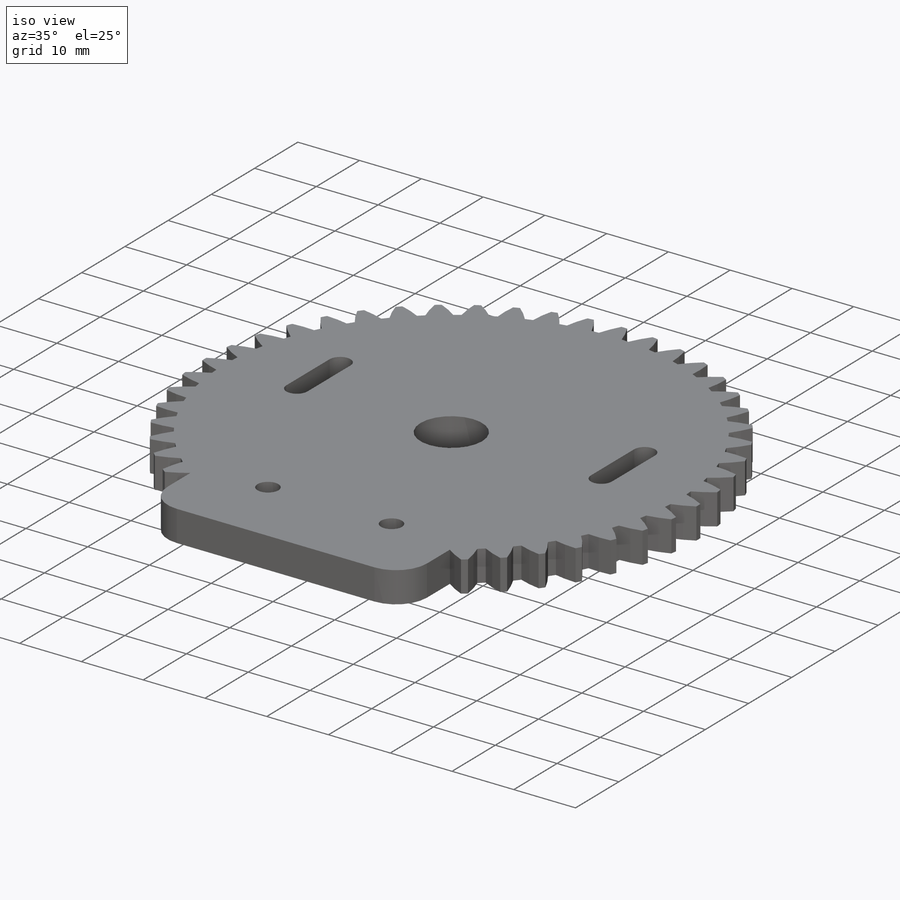
[diagram: iso view]
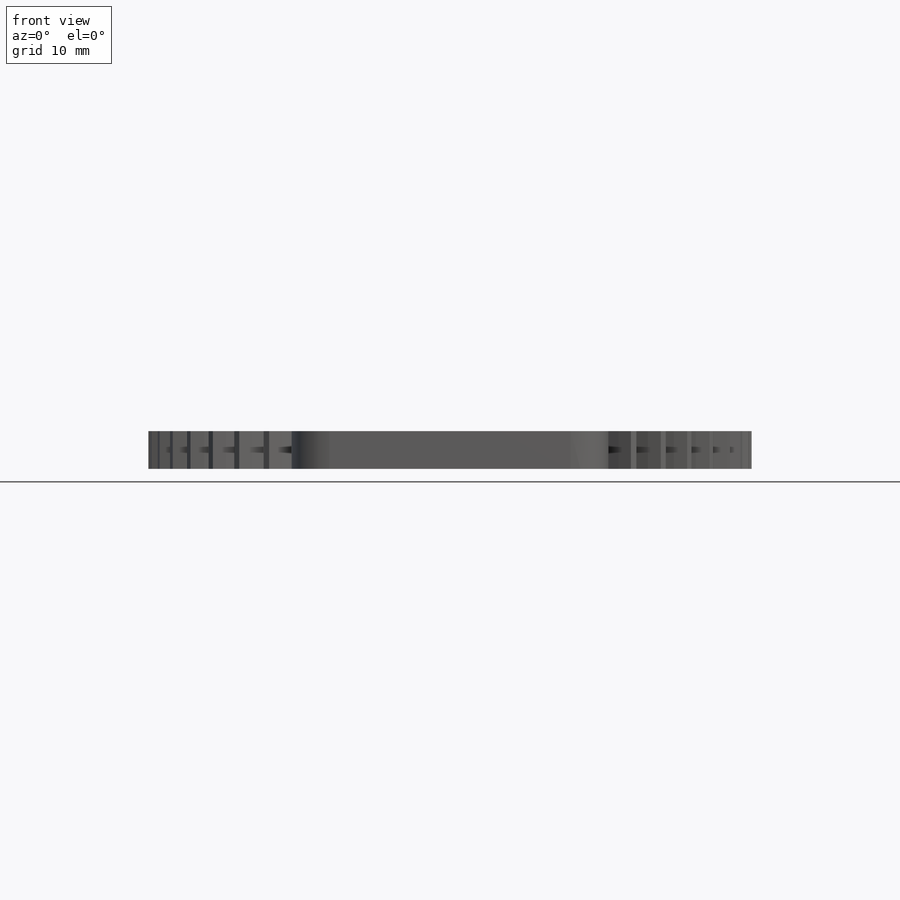
[diagram: front view]
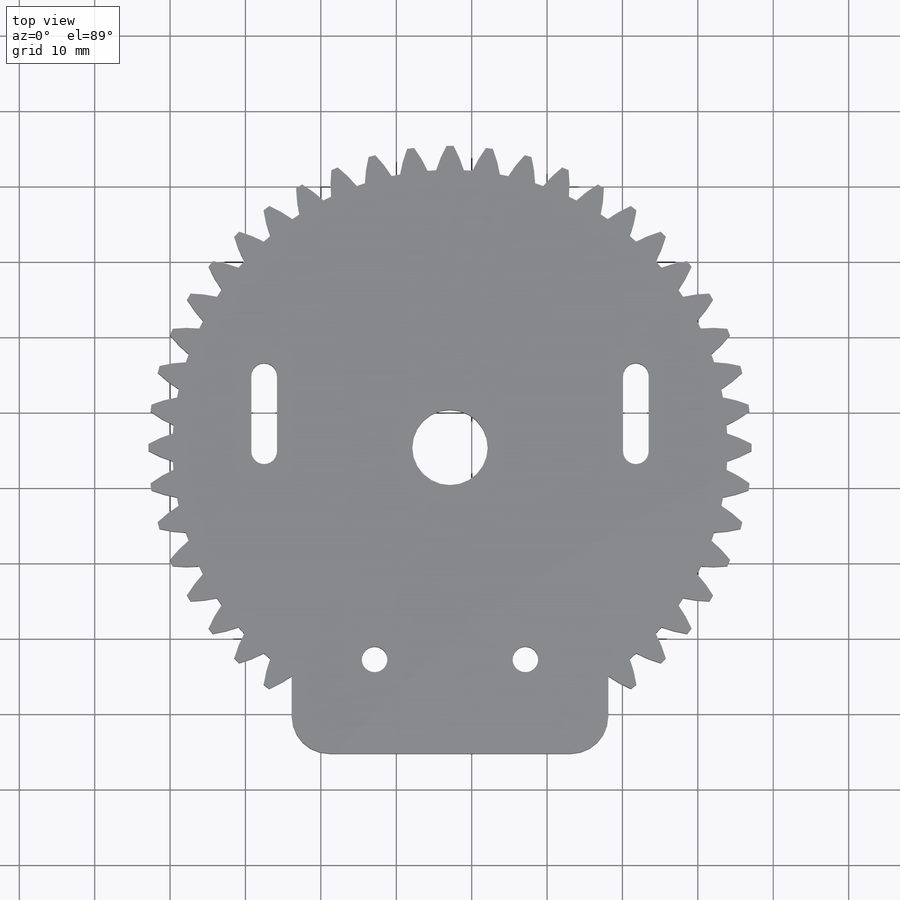
[diagram: top view]
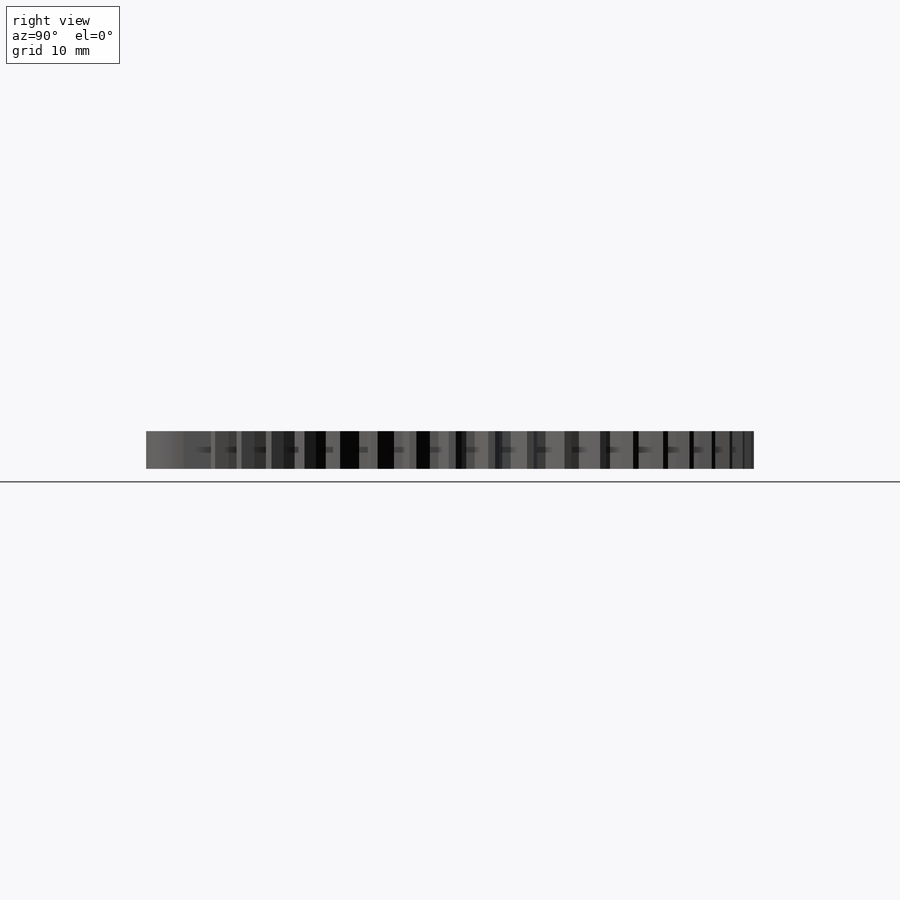
[diagram: right view]
SOLIDWORKS PART (.sldprt)
format: sldprt  version: not decoded by parser v0  size: 540,160 bytes
history: native  units: mm
features: sketch x4, extrude x2, cut_extrude x2, material x1, fillet x1 (+11 scaffold rows collapsed)
feature tree (21):
  scaffold x11  (default folders/planes/origin — collapsed)
  material  "Acrylic (Medium-high impact)"
  sketch  "Sketch2"  dims[D1=10.0mm]
  sketch  "Sketch7"  dims[D3=3.4mm D1=20.0mm D2=28.113mm]
  sketch  "Sketch8"  dims[D1=42.0mm D2=25.0mm]
  extrude  "Boss-Extrude3"  Depth=5mm
  extrude  "Boss-Extrude4"  [1 undecoded]
  cut_extrude  "Cut-Extrude1"  [1 undecoded]
  sketch  "Sketch10"  dims[D1=10.0mm]
  cut_extrude  "Cut-Extrude2"  [1 undecoded]
  fillet  "Fillet1"  Radius=5mm
decode coverage: 6 of 9 modeling features carry decoded parameters
note: 3 parameter values undecoded
summary: no parameter record found for 3 features
note: suppression state not decoded; provenance and decode notes live in map.json
